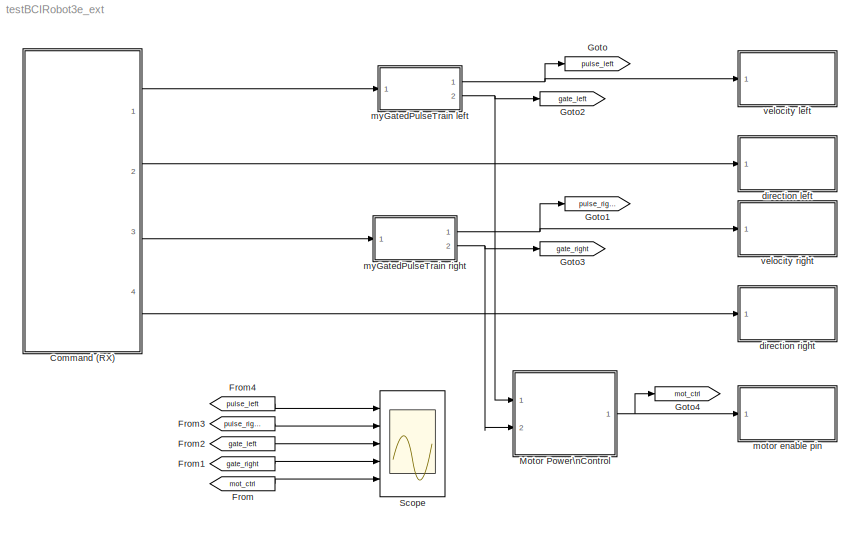
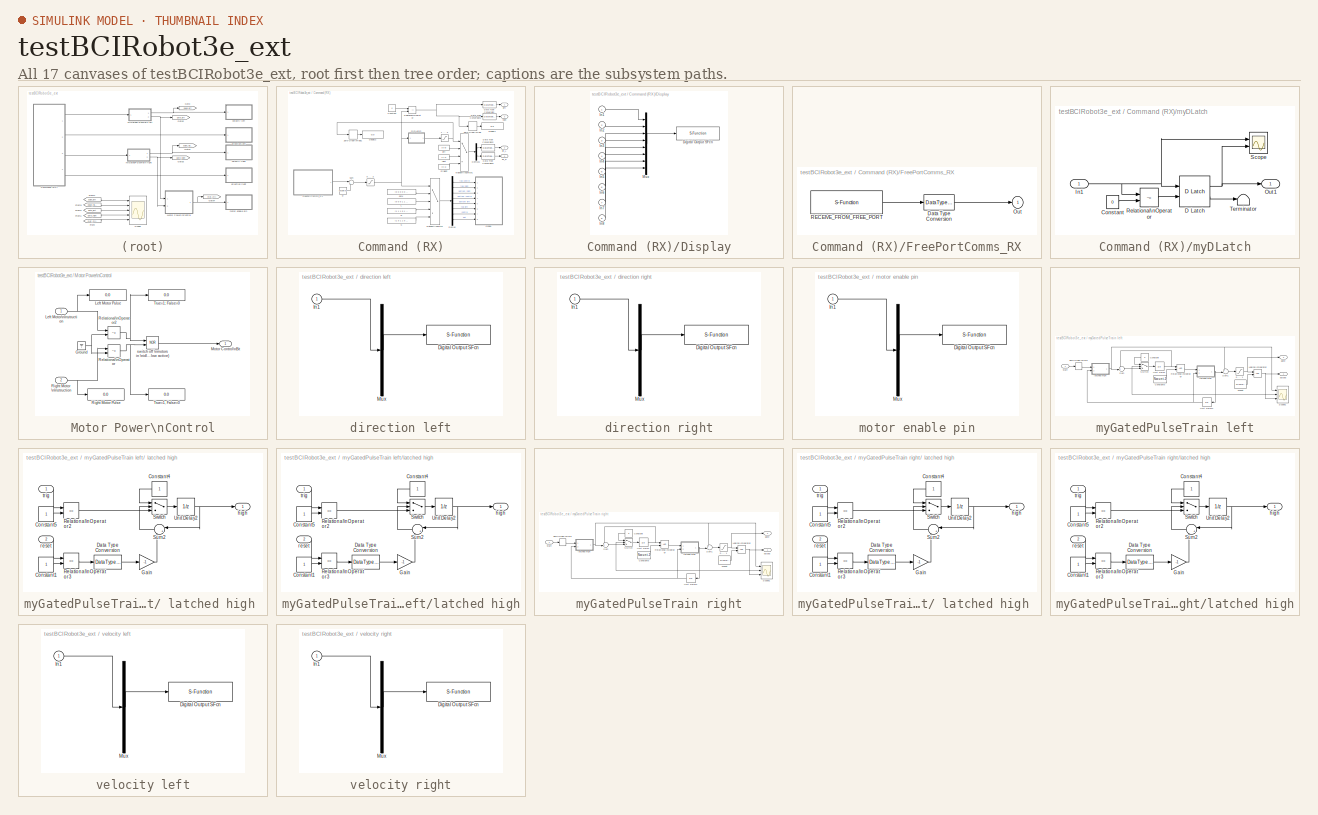
[diagram: thumbnail index - all 17 canvases of the model, root first then tree order]
MODEL testBCIRobot3e_ext
KIND model
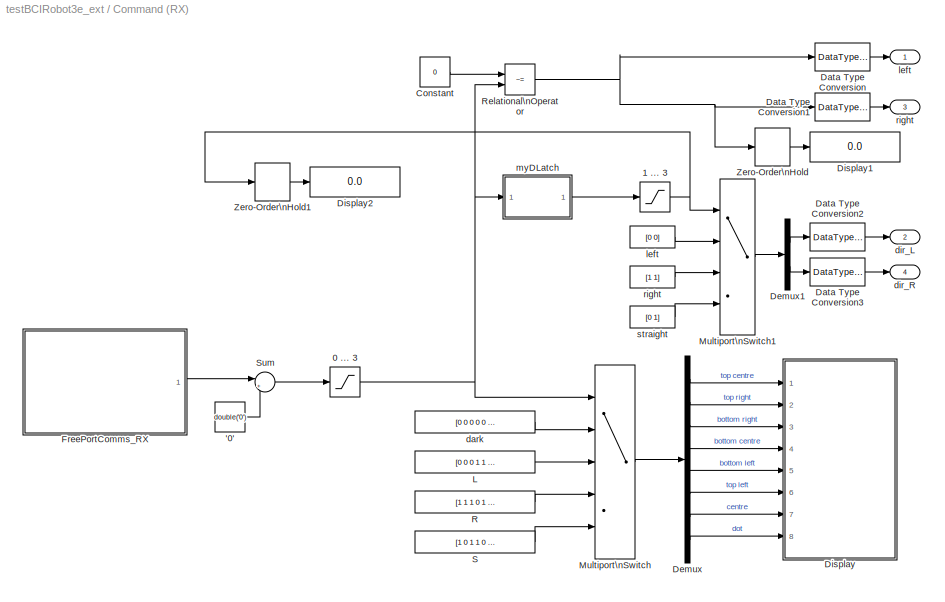
BLOCK [SubSystem] Command (RX)
  Ports = [0, 4]
  RequestExecContextInheritance = off
  SID = 1
BLOCK [Constant] Command (RX)/ left 
  OutDataTypeStr = double
  SID = 2
  Value = [0 0]
BLOCK [Constant] Command (RX)/ right 
  OutDataTypeStr = double
  SID = 3
  Value = [1 1]
BLOCK [Constant] Command (RX)/ straight 
  OutDataTypeStr = double
  SID = 4
  Value = [0 1]
BLOCK [Constant] Command (RX)/'0'
  SID = 5
  Value = double('0')
BLOCK [Saturate] Command (RX)/0 ... 3
  InputPortMap = u0
  LowerLimit = 0
  Ports = [1, 1]
  SID = 6
  UpperLimit = 3
BLOCK [Saturate] Command (RX)/1 ... 3
  InputPortMap = u0
  LowerLimit = 1
  Ports = [1, 1]
  SID = 7
  UpperLimit = 3
BLOCK [Constant] Command (RX)/Constant
  SID = 8
  Value = 0
BLOCK [DataTypeConversion] Command (RX)/Data Type Conversion
  OutDataTypeStr = double
  SID = 9
BLOCK [DataTypeConversion] Command (RX)/Data Type Conversion1
  OutDataTypeStr = double
  SID = 10
BLOCK [DataTypeConversion] Command (RX)/Data Type Conversion2
  OutDataTypeStr = double
  SID = 11
BLOCK [DataTypeConversion] Command (RX)/Data Type Conversion3
  OutDataTypeStr = double
  SID = 12
BLOCK [Demux] Command (RX)/Demux
  Outputs = 8
  Ports = [1, 8]
  SID = 13
BLOCK [Demux] Command (RX)/Demux1
  Outputs = 2
  Ports = [1, 2]
  SID = 14
BLOCK [SubSystem] Command (RX)/Display
  Ports = [8]
  RequestExecContextInheritance = off
  SID = 15
  ShowPortLabels = none
  Tag = mcTarget_digOut
BLOCK [S-Function] Command (RX)/Display/Digital Output SFcn
  EnableBusSupport = off
  FunctionName = digOut_sfcn_9S12
  Parameters = sampletime, port, pins, Von, Voff
  Ports = [1]
  SFcnIsStateOwnerBlock = off
  SFunctionDeploymentMode = off
  SID = 15:9
  Tag = mcTarget_digOut
BLOCK [Inport] Command (RX)/Display/In1
  IconDisplay = Port number
  SID = 15:1
BLOCK [Inport] Command (RX)/Display/In2
  IconDisplay = Port number
  Port = 2
  SID = 15:2
BLOCK [Inport] Command (RX)/Display/In3
  IconDisplay = Port number
  Port = 3
  SID = 15:3
BLOCK [Inport] Command (RX)/Display/In4
  IconDisplay = Port number
  Port = 4
  SID = 15:4
BLOCK [Inport] Command (RX)/Display/In5
  IconDisplay = Port number
  Port = 5
  SID = 15:5
BLOCK [Inport] Command (RX)/Display/In6
  IconDisplay = Port number
  Port = 6
  SID = 15:6
BLOCK [Inport] Command (RX)/Display/In7
  IconDisplay = Port number
  Port = 7
  SID = 15:7
BLOCK [Inport] Command (RX)/Display/In8
  IconDisplay = Port number
  Port = 8
  SID = 15:8
BLOCK [Mux] Command (RX)/Display/Mux
  DisplayOption = bar
  Inputs = 8
  Ports = [8, 1]
  SID = 15:10
BLOCK [Display] Command (RX)/Display1
  Decimation = 1
  ExtModeUploadOption = log
  Ports = [1]
  SID = 16
BLOCK [Display] Command (RX)/Display2
  Decimation = 1
  ExtModeUploadOption = log
  Ports = [1]
  SID = 17
BLOCK [SubSystem] Command (RX)/FreePortComms_RX
  Ports = [0, 1]
  RequestExecContextInheritance = off
  SID = 159
  ShowPortLabels = none
  Tag = mcTarget_freePortCommsRX
BLOCK [DataTypeConversion] Command (RX)/FreePortComms_RX/Data Type Conversion
  OutDataTypeStr = double
  SID = 159:153
BLOCK [Outport] Command (RX)/FreePortComms_RX/Out
  IconDisplay = Port number
  SID = 159:155
BLOCK [S-Function] Command (RX)/FreePortComms_RX/RECEIVE_FROM_FREE_PORT
  EnableBusSupport = off
  FunctionName = freePortComms_rxd
  Parameters = sampletime, channel, buf_size, data_type, port, baudrate, format
  Ports = [0, 1]
  SFcnIsStateOwnerBlock = off
  SFunctionDeploymentMode = off
  SID = 159:154
  Tag = mcTarget_freePortCommsRX
BLOCK [Constant] Command (RX)/L
  OutDataTypeStr = double
  SID = 19
  Value = [0 0 0 1 1 1 0 0 ]
BLOCK [MultiPortSwitch] Command (RX)/Multiport\nSwitch
  DataPortOrder = Zero-based contiguous
  InputSameDT = off
  Inputs = 4
  Ports = [5, 1]
  SID = 20
  zeroidx = on
BLOCK [MultiPortSwitch] Command (RX)/Multiport\nSwitch1
  InputSameDT = off
  Ports = [4, 1]
  SID = 21
BLOCK [Constant] Command (RX)/R
  OutDataTypeStr = double
  SID = 22
  Value = [1 1 1 0 1 1 1 0]
BLOCK [RelationalOperator] Command (RX)/Relational\nOperator
  InputSameDT = off
  Operator = ~=
  OutDataTypeStr = uint(8)
  Ports = [2, 1]
  SID = 23
BLOCK [Constant] Command (RX)/S
  OutDataTypeStr = double
  SID = 24
  Value = [1 0 1 1 0 1 1 0]
BLOCK [Sum] Command (RX)/Sum
  IconShape = round
  InputSameDT = off
  Inputs = |+-
  OutDataTypeStr = Inherit: Inherit via internal rule
  Ports = [2, 1]
  SID = 25
BLOCK [ZeroOrderHold] Command (RX)/Zero-Order\nHold
  SID = 26
  SampleTime = 0.1
BLOCK [ZeroOrderHold] Command (RX)/Zero-Order\nHold1
  SID = 27
  SampleTime = 0.1
BLOCK [Constant] Command (RX)/dark
  OutDataTypeStr = double
  SID = 28
  Value = [0 0 0 0 0 0 0 0]
BLOCK [Outport] Command (RX)/dir_L
  IconDisplay = Port number
  Port = 2
  SID = 38
BLOCK [Outport] Command (RX)/dir_R
  IconDisplay = Port number
  Port = 4
  SID = 40
BLOCK [Outport] Command (RX)/left
  IconDisplay = Port number
  SID = 37
BLOCK [SubSystem] Command (RX)/myDLatch
  Ports = [1, 1]
  RequestExecContextInheritance = off
  SID = 29
BLOCK [Constant] Command (RX)/myDLatch/Constant
  SID = 31
  Value = 0
BLOCK [Reference] Command (RX)/myDLatch/D Latch  REF=simulink_extras/Flip Flops/D Latch
  FunctionWithSeparateData = off
  Ports = [2, 2]
  RTWMemSecDataConstants = Inherit from model
  RTWMemSecDataInternal = Inherit from model
  RTWMemSecDataParameters = Inherit from model
  RTWMemSecFuncExecute = Inherit from model
  RTWMemSecFuncInitTerm = Inherit from model
  SID = 32
  ShowPortLabels = FromPortIcon
  SourceBlock = simulink_extras/Flip Flops/D Latch
  SourceProductBaseCode = SL
  SourceProductName = Simulink
  SourceType = DLatch
  SystemSampleTime = -1
BLOCK [Inport] Command (RX)/myDLatch/In1
  IconDisplay = Port number
  SID = 30
BLOCK [Outport] Command (RX)/myDLatch/Out1
  IconDisplay = Port number
  SID = 36
BLOCK [RelationalOperator] Command (RX)/myDLatch/Relational\nOperator
  InputSameDT = off
  Operator = ~=
  Ports = [2, 1]
  SID = 33
BLOCK [Scope] Command (RX)/myDLatch/Scope
  Floating = off
  NumInputPorts = 2
  Ports = [2]
  SID = 34
  ScopeSpecificationString = C++SS(StrPVP('Location','[188, 365, 512, 604]'),StrPVP('Open','off'),MxPVP('AxesTitles',54,'struct(''axes1'',''%<SignalLabel>'',''axes2'',''%<SignalLabel>'')'),StrPVP('YMin','-5~-5'),StrPVP('YMax','5~5'),StrPVP('SaveName','ScopeData3'),StrPVP('DataFormat','StructureWithTime'),StrPVP('LimitDataPoints','on'),StrPVP('Decimation','1'),StrPVP('BlockParamSampleInput','off'))
BLOCK [Terminator] Command (RX)/myDLatch/Terminator
  SID = 35
BLOCK [Outport] Command (RX)/right
  IconDisplay = Port number
  Port = 3
  SID = 39
BLOCK [From] From
  CloseFcn = tagdialog Close
  GotoTag = mot_ctrl
  SID = 41
BLOCK [From] From1
  CloseFcn = tagdialog Close
  GotoTag = gate_right
  SID = 42
BLOCK [From] From2
  CloseFcn = tagdialog Close
  GotoTag = gate_left
  SID = 43
BLOCK [From] From3
  CloseFcn = tagdialog Close
  GotoTag = pulse_right
  SID = 44
BLOCK [From] From4
  CloseFcn = tagdialog Close
  GotoTag = pulse_left
  SID = 45
BLOCK [Goto] Goto
  GotoTag = pulse_left
  SID = 46
BLOCK [Goto] Goto1
  GotoTag = pulse_right
  SID = 47
BLOCK [Goto] Goto2
  GotoTag = gate_left
  SID = 48
BLOCK [Goto] Goto3
  GotoTag = gate_right
  SID = 49
BLOCK [Goto] Goto4
  GotoTag = mot_ctrl
  SID = 50
BLOCK [SubSystem] Motor Power\nControl
  Ports = [2, 1]
  RequestExecContextInheritance = off
  SID = 51
BLOCK [Ground] Motor Power\nControl/Ground
  SID = 54
BLOCK [Display] Motor Power\nControl/Left Motor Pulse
  Decimation = 1
  Ports = [1]
  SID = 55
BLOCK [Inport] Motor Power\nControl/Left Motor\nInstruction
  IconDisplay = Port number
  SID = 52
BLOCK [Outport] Motor Power\nControl/Motor Control\nBit
  IconDisplay = Port number
  SID = 62
BLOCK [RelationalOperator] Motor Power\nControl/Relational\nOperator
  InputSameDT = off
  Operator = ~=
  Ports = [2, 1]
  SID = 56
BLOCK [RelationalOperator] Motor Power\nControl/Relational\nOperator2
  InputSameDT = off
  Operator = ~=
  Ports = [2, 1]
  SID = 57
BLOCK [Display] Motor Power\nControl/Right Motor Pulse
  Decimation = 1
  Ports = [1]
  SID = 58
BLOCK [Inport] Motor Power\nControl/Right Motor \nInstruction
  IconDisplay = Port number
  Port = 2
  SID = 53
BLOCK [Display] Motor Power\nControl/True=1, False=0
  Decimation = 1
  Ports = [1]
  SID = 59
BLOCK [Display] Motor Power\nControl/True=1; False=0
  Decimation = 1
  Ports = [1]
  SID = 60
BLOCK [Logic] Motor Power\nControl/switch off \nmotors in \nidle state\n(low active)
  AllPortsSameDT = off
  Operator = NOR
  Ports = [2, 1]
  SID = 61
BLOCK [Scope] Scope
  Floating = off
  NumInputPorts = 5
  Ports = [5]
  SID = 63
  ScopeSpecificationString = C++SS(StrPVP('Location','[83, 190, 578, 651]'),StrPVP('Open','off'),MxPVP('AxesTitles',54,'struct(''axes1'',''%<SignalLabel>'',''axes2'',''%<SignalLabel>'',''axes3'',''%<SignalLabel>'',''axes4'',''%<SignalLabel>'',''axes5'',''%<SignalLabel>'')'),StrPVP('TimeRange','10'),StrPVP('YMin','-5~-5~-5~-5~-5'),StrPVP('YMax','5~5~5~5~5'),StrPVP('DataFormat','StructureWithTime'),StrPVP('LimitDataPoints','on'...<+65ch>
BLOCK [SubSystem] direction left
  Ports = [1]
  RequestExecContextInheritance = off
  SID = 64
  ShowPortLabels = none
  Tag = mcTarget_digOut
BLOCK [S-Function] direction left/Digital Output SFcn
  EnableBusSupport = off
  FunctionName = digOut_sfcn_9S12
  Parameters = sampletime, port, pins, Von, Voff
  Ports = [1]
  SFcnIsStateOwnerBlock = off
  SFunctionDeploymentMode = off
  SID = 64:2
  Tag = mcTarget_digOut
BLOCK [Inport] direction left/In1
  IconDisplay = Port number
  SID = 64:1
BLOCK [Mux] direction left/Mux
  DisplayOption = bar
  Inputs = 1
  Ports = [1, 1]
  SID = 64:3
BLOCK [SubSystem] direction right
  Ports = [1]
  RequestExecContextInheritance = off
  SID = 65
  ShowPortLabels = none
  Tag = mcTarget_digOut
BLOCK [S-Function] direction right/Digital Output SFcn
  EnableBusSupport = off
  FunctionName = digOut_sfcn_9S12
  Parameters = sampletime, port, pins, Von, Voff
  Ports = [1]
  SFcnIsStateOwnerBlock = off
  SFunctionDeploymentMode = off
  SID = 65:2
  Tag = mcTarget_digOut
BLOCK [Inport] direction right/In1
  IconDisplay = Port number
  SID = 65:1
BLOCK [Mux] direction right/Mux
  DisplayOption = bar
  Inputs = 1
  Ports = [1, 1]
  SID = 65:3
BLOCK [SubSystem] motor enable pin
  Ports = [1]
  RequestExecContextInheritance = off
  SID = 66
  ShowPortLabels = none
  Tag = mcTarget_digOut
BLOCK [S-Function] motor enable pin/Digital Output SFcn
  EnableBusSupport = off
  FunctionName = digOut_sfcn_9S12
  Parameters = sampletime, port, pins, Von, Voff
  Ports = [1]
  SFcnIsStateOwnerBlock = off
  SFunctionDeploymentMode = off
  SID = 66:2
  Tag = mcTarget_digOut
BLOCK [Inport] motor enable pin/In1
  IconDisplay = Port number
  SID = 66:1
BLOCK [Mux] motor enable pin/Mux
  DisplayOption = bar
  Inputs = 1
  Ports = [1, 1]
  SID = 66:3
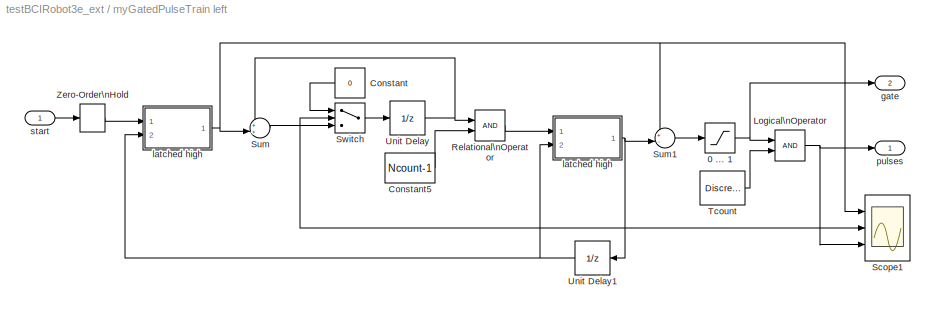
BLOCK [SubSystem] myGatedPulseTrain left
  Ports = [1, 2]
  RequestExecContextInheritance = off
  SID = 67
BLOCK [SubSystem] myGatedPulseTrain left/ latched high 
  Ports = [2, 1]
  RequestExecContextInheritance = off
  SID = 69
BLOCK [Constant] myGatedPulseTrain left/ latched high /Constant1
  SID = 72
BLOCK [Constant] myGatedPulseTrain left/ latched high /Constant4
  SID = 73
BLOCK [Constant] myGatedPulseTrain left/ latched high /Constant5
  SID = 74
BLOCK [DataTypeConversion] myGatedPulseTrain left/ latched high /Data Type Conversion
  OutDataTypeStr = double
  SID = 75
BLOCK [Gain] myGatedPulseTrain left/ latched high /Gain
  Gain = -1
  SID = 76
BLOCK [RelationalOperator] myGatedPulseTrain left/ latched high /Relational\nOperator2
  InputSameDT = off
  Operator = ==
  OutDataTypeStr = uint(8)
  Ports = [2, 1]
  SID = 77
BLOCK [RelationalOperator] myGatedPulseTrain left/ latched high /Relational\nOperator3
  InputSameDT = off
  Operator = ==
  OutDataTypeStr = uint(8)
  Ports = [2, 1]
  SID = 78
BLOCK [Sum] myGatedPulseTrain left/ latched high /Sum2
  IconShape = round
  InputSameDT = off
  Inputs = |++
  OutDataTypeStr = Inherit: Inherit via internal rule
  Ports = [2, 1]
  SID = 79
  SaturateOnIntegerOverflow = off
BLOCK [Switch] myGatedPulseTrain left/ latched high /Switch
  Criteria = u2 > Threshold
  InputSameDT = off
  SID = 80
  SaturateOnIntegerOverflow = off
BLOCK [UnitDelay] myGatedPulseTrain left/ latched high /Unit Delay2
  SID = 81
  SampleTime = -1
BLOCK [Outport] myGatedPulseTrain left/ latched high /high
  IconDisplay = Port number
  SID = 82
BLOCK [Inport] myGatedPulseTrain left/ latched high /reset
  IconDisplay = Port number
  Port = 2
  SID = 71
BLOCK [Inport] myGatedPulseTrain left/ latched high /trig
  IconDisplay = Port number
  SID = 70
BLOCK [Saturate] myGatedPulseTrain left/0 ... 1
  InputPortMap = u0
  LowerLimit = 0
  Ports = [1, 1]
  SID = 83
  UpperLimit = 1
BLOCK [Constant] myGatedPulseTrain left/Constant
  SID = 84
  Value = 0
BLOCK [Constant] myGatedPulseTrain left/Constant5
  SID = 85
  Value = Ncount-1
BLOCK [Logic] myGatedPulseTrain left/Logical\nOperator
  AllPortsSameDT = off
  Ports = [2, 1]
  SID = 86
BLOCK [RelationalOperator] myGatedPulseTrain left/Relational\nOperator
  InputSameDT = off
  OutDataTypeStr = uint(8)
  Ports = [2, 1]
  SID = 87
BLOCK [Scope] myGatedPulseTrain left/Scope1
  Floating = off
  NumInputPorts = 3
  Ports = [3]
  SID = 88
  ScopeSpecificationString = C++SS(StrPVP('Location','[256, 383, 656, 652]'),StrPVP('Open','off'),StrPVP('ZoomMode','xonly'),MxPVP('AxesTitles',54,'struct(''axes1'',''%<SignalLabel>'',''axes2'',''%<SignalLabel>'',''axes3'',''%<SignalLabel>'')'),StrPVP('YMin','-5~-5~-5'),StrPVP('YMax','5~5~5'),StrPVP('SaveName','ScopeData1'),StrPVP('DataFormat','StructureWithTime'),StrPVP('LimitDataPoints','on'),StrPVP('Decimation','1'),StrPVP...<+32ch>
BLOCK [Sum] myGatedPulseTrain left/Sum
  IconShape = round
  InputSameDT = off
  Inputs = ++|
  OutDataTypeStr = Inherit: Inherit via internal rule
  Ports = [2, 1]
  SID = 89
  SaturateOnIntegerOverflow = off
BLOCK [Sum] myGatedPulseTrain left/Sum1
  IconShape = round
  InputSameDT = off
  Inputs = +-|
  OutDataTypeStr = Inherit: Inherit via internal rule
  Ports = [2, 1]
  SID = 90
  SaturateOnIntegerOverflow = off
BLOCK [Switch] myGatedPulseTrain left/Switch
  Criteria = u2 > Threshold
  InputSameDT = off
  SID = 91
  SaturateOnIntegerOverflow = off
BLOCK [DiscretePulseGenerator] myGatedPulseTrain left/Tcount
  Ports = [0, 1]
  SID = 92
  SampleTime = Tcount
BLOCK [UnitDelay] myGatedPulseTrain left/Unit Delay
  SID = 93
  SampleTime = Tcount
BLOCK [UnitDelay] myGatedPulseTrain left/Unit Delay1
  SID = 94
  SampleTime = Tcount
BLOCK [ZeroOrderHold] myGatedPulseTrain left/Zero-Order\nHold
  SID = 95
  SampleTime = Tcount
BLOCK [Outport] myGatedPulseTrain left/gate
  IconDisplay = Port number
  Port = 2
  SID = 111
BLOCK [SubSystem] myGatedPulseTrain left/latched high
  Ports = [2, 1]
  RequestExecContextInheritance = off
  SID = 96
BLOCK [Constant] myGatedPulseTrain left/latched high/Constant1
  SID = 99
BLOCK [Constant] myGatedPulseTrain left/latched high/Constant4
  SID = 100
BLOCK [Constant] myGatedPulseTrain left/latched high/Constant5
  SID = 101
BLOCK [DataTypeConversion] myGatedPulseTrain left/latched high/Data Type Conversion
  OutDataTypeStr = double
  SID = 102
BLOCK [Gain] myGatedPulseTrain left/latched high/Gain
  Gain = -1
  SID = 103
BLOCK [RelationalOperator] myGatedPulseTrain left/latched high/Relational\nOperator2
  InputSameDT = off
  Operator = ==
  OutDataTypeStr = uint(8)
  Ports = [2, 1]
  SID = 104
BLOCK [RelationalOperator] myGatedPulseTrain left/latched high/Relational\nOperator3
  InputSameDT = off
  Operator = ==
  OutDataTypeStr = uint(8)
  Ports = [2, 1]
  SID = 105
BLOCK [Sum] myGatedPulseTrain left/latched high/Sum2
  IconShape = round
  InputSameDT = off
  Inputs = |++
  OutDataTypeStr = Inherit: Inherit via internal rule
  Ports = [2, 1]
  SID = 106
  SaturateOnIntegerOverflow = off
BLOCK [Switch] myGatedPulseTrain left/latched high/Switch
  Criteria = u2 > Threshold
  InputSameDT = off
  SID = 107
  SaturateOnIntegerOverflow = off
BLOCK [UnitDelay] myGatedPulseTrain left/latched high/Unit Delay2
  SID = 108
  SampleTime = -1
BLOCK [Outport] myGatedPulseTrain left/latched high/high
  IconDisplay = Port number
  SID = 109
BLOCK [Inport] myGatedPulseTrain left/latched high/reset
  IconDisplay = Port number
  Port = 2
  SID = 98
BLOCK [Inport] myGatedPulseTrain left/latched high/trig
  IconDisplay = Port number
  SID = 97
BLOCK [Outport] myGatedPulseTrain left/pulses
  IconDisplay = Port number
  SID = 110
BLOCK [Inport] myGatedPulseTrain left/start
  IconDisplay = Port number
  SID = 68
BLOCK [SubSystem] myGatedPulseTrain right
  Ports = [1, 2]
  RequestExecContextInheritance = off
  SID = 112
BLOCK [SubSystem] myGatedPulseTrain right/ latched high 
  Ports = [2, 1]
  RequestExecContextInheritance = off
  SID = 114
BLOCK [Constant] myGatedPulseTrain right/ latched high /Constant1
  SID = 117
BLOCK [Constant] myGatedPulseTrain right/ latched high /Constant4
  SID = 118
BLOCK [Constant] myGatedPulseTrain right/ latched high /Constant5
  SID = 119
BLOCK [DataTypeConversion] myGatedPulseTrain right/ latched high /Data Type Conversion
  OutDataTypeStr = double
  SID = 120
BLOCK [Gain] myGatedPulseTrain right/ latched high /Gain
  Gain = -1
  SID = 121
BLOCK [RelationalOperator] myGatedPulseTrain right/ latched high /Relational\nOperator2
  InputSameDT = off
  Operator = ==
  OutDataTypeStr = uint(8)
  Ports = [2, 1]
  SID = 122
BLOCK [RelationalOperator] myGatedPulseTrain right/ latched high /Relational\nOperator3
  InputSameDT = off
  Operator = ==
  OutDataTypeStr = uint(8)
  Ports = [2, 1]
  SID = 123
BLOCK [Sum] myGatedPulseTrain right/ latched high /Sum2
  IconShape = round
  InputSameDT = off
  Inputs = |++
  OutDataTypeStr = Inherit: Inherit via internal rule
  Ports = [2, 1]
  SID = 124
  SaturateOnIntegerOverflow = off
BLOCK [Switch] myGatedPulseTrain right/ latched high /Switch
  Criteria = u2 > Threshold
  InputSameDT = off
  SID = 125
  SaturateOnIntegerOverflow = off
BLOCK [UnitDelay] myGatedPulseTrain right/ latched high /Unit Delay2
  SID = 126
  SampleTime = -1
BLOCK [Outport] myGatedPulseTrain right/ latched high /high
  IconDisplay = Port number
  SID = 127
BLOCK [Inport] myGatedPulseTrain right/ latched high /reset
  IconDisplay = Port number
  Port = 2
  SID = 116
BLOCK [Inport] myGatedPulseTrain right/ latched high /trig
  IconDisplay = Port number
  SID = 115
BLOCK [Saturate] myGatedPulseTrain right/0 ... 1
  InputPortMap = u0
  LowerLimit = 0
  Ports = [1, 1]
  SID = 128
  UpperLimit = 1
BLOCK [Constant] myGatedPulseTrain right/Constant
  SID = 129
  Value = 0
BLOCK [Constant] myGatedPulseTrain right/Constant5
  SID = 130
  Value = Ncount-1
BLOCK [Logic] myGatedPulseTrain right/Logical\nOperator
  AllPortsSameDT = off
  Ports = [2, 1]
  SID = 131
BLOCK [RelationalOperator] myGatedPulseTrain right/Relational\nOperator
  InputSameDT = off
  OutDataTypeStr = uint(8)
  Ports = [2, 1]
  SID = 132
BLOCK [Scope] myGatedPulseTrain right/Scope1
  Floating = off
  NumInputPorts = 3
  Ports = [3]
  SID = 133
  ScopeSpecificationString = C++SS(StrPVP('Location','[256, 383, 656, 652]'),StrPVP('Open','off'),StrPVP('ZoomMode','xonly'),MxPVP('AxesTitles',54,'struct(''axes1'',''%<SignalLabel>'',''axes2'',''%<SignalLabel>'',''axes3'',''%<SignalLabel>'')'),StrPVP('YMin','-5~-5~-5'),StrPVP('YMax','5~5~5'),StrPVP('SaveName','ScopeData1'),StrPVP('DataFormat','StructureWithTime'),StrPVP('LimitDataPoints','on'),StrPVP('Decimation','1'),StrPVP...<+32ch>
BLOCK [Sum] myGatedPulseTrain right/Sum
  IconShape = round
  InputSameDT = off
  Inputs = ++|
  OutDataTypeStr = Inherit: Inherit via internal rule
  Ports = [2, 1]
  SID = 134
  SaturateOnIntegerOverflow = off
BLOCK [Sum] myGatedPulseTrain right/Sum1
  IconShape = round
  InputSameDT = off
  Inputs = +-|
  OutDataTypeStr = Inherit: Inherit via internal rule
  Ports = [2, 1]
  SID = 135
  SaturateOnIntegerOverflow = off
BLOCK [Switch] myGatedPulseTrain right/Switch
  Criteria = u2 > Threshold
  InputSameDT = off
  SID = 136
  SaturateOnIntegerOverflow = off
BLOCK [DiscretePulseGenerator] myGatedPulseTrain right/Tcount
  Ports = [0, 1]
  SID = 137
  SampleTime = Tcount
BLOCK [UnitDelay] myGatedPulseTrain right/Unit Delay
  SID = 138
  SampleTime = Tcount
BLOCK [UnitDelay] myGatedPulseTrain right/Unit Delay1
  SID = 139
  SampleTime = Tcount
BLOCK [ZeroOrderHold] myGatedPulseTrain right/Zero-Order\nHold
  SID = 140
  SampleTime = Tcount
BLOCK [Outport] myGatedPulseTrain right/gate
  IconDisplay = Port number
  Port = 2
  SID = 156
BLOCK [SubSystem] myGatedPulseTrain right/latched high
  Ports = [2, 1]
  RequestExecContextInheritance = off
  SID = 141
BLOCK [Constant] myGatedPulseTrain right/latched high/Constant1
  SID = 144
BLOCK [Constant] myGatedPulseTrain right/latched high/Constant4
  SID = 145
BLOCK [Constant] myGatedPulseTrain right/latched high/Constant5
  SID = 146
BLOCK [DataTypeConversion] myGatedPulseTrain right/latched high/Data Type Conversion
  OutDataTypeStr = double
  SID = 147
BLOCK [Gain] myGatedPulseTrain right/latched high/Gain
  Gain = -1
  SID = 148
BLOCK [RelationalOperator] myGatedPulseTrain right/latched high/Relational\nOperator2
  InputSameDT = off
  Operator = ==
  OutDataTypeStr = uint(8)
  Ports = [2, 1]
  SID = 149
BLOCK [RelationalOperator] myGatedPulseTrain right/latched high/Relational\nOperator3
  InputSameDT = off
  Operator = ==
  OutDataTypeStr = uint(8)
  Ports = [2, 1]
  SID = 150
BLOCK [Sum] myGatedPulseTrain right/latched high/Sum2
  IconShape = round
  InputSameDT = off
  Inputs = |++
  OutDataTypeStr = Inherit: Inherit via internal rule
  Ports = [2, 1]
  SID = 151
  SaturateOnIntegerOverflow = off
BLOCK [Switch] myGatedPulseTrain right/latched high/Switch
  Criteria = u2 > Threshold
  InputSameDT = off
  SID = 152
  SaturateOnIntegerOverflow = off
BLOCK [UnitDelay] myGatedPulseTrain right/latched high/Unit Delay2
  SID = 153
  SampleTime = -1
BLOCK [Outport] myGatedPulseTrain right/latched high/high
  IconDisplay = Port number
  SID = 154
BLOCK [Inport] myGatedPulseTrain right/latched high/reset
  IconDisplay = Port number
  Port = 2
  SID = 143
BLOCK [Inport] myGatedPulseTrain right/latched high/trig
  IconDisplay = Port number
  SID = 142
BLOCK [Outport] myGatedPulseTrain right/pulses
  IconDisplay = Port number
  SID = 155
BLOCK [Inport] myGatedPulseTrain right/start
  IconDisplay = Port number
  SID = 113
BLOCK [SubSystem] velocity left
  Ports = [1]
  RequestExecContextInheritance = off
  SID = 157
  ShowPortLabels = none
  Tag = mcTarget_digOut
BLOCK [S-Function] velocity left/Digital Output SFcn
  EnableBusSupport = off
  FunctionName = digOut_sfcn_9S12
  Parameters = sampletime, port, pins, Von, Voff
  Ports = [1]
  SFcnIsStateOwnerBlock = off
  SFunctionDeploymentMode = off
  SID = 157:2
  Tag = mcTarget_digOut
BLOCK [Inport] velocity left/In1
  IconDisplay = Port number
  SID = 157:1
BLOCK [Mux] velocity left/Mux
  DisplayOption = bar
  Inputs = 1
  Ports = [1, 1]
  SID = 157:3
BLOCK [SubSystem] velocity right
  Ports = [1]
  RequestExecContextInheritance = off
  SID = 158
  ShowPortLabels = none
  Tag = mcTarget_digOut
BLOCK [S-Function] velocity right/Digital Output SFcn
  EnableBusSupport = off
  FunctionName = digOut_sfcn_9S12
  Parameters = sampletime, port, pins, Von, Voff
  Ports = [1]
  SFcnIsStateOwnerBlock = off
  SFunctionDeploymentMode = off
  SID = 158:2
  Tag = mcTarget_digOut
BLOCK [Inport] velocity right/In1
  IconDisplay = Port number
  SID = 158:1
BLOCK [Mux] velocity right/Mux
  DisplayOption = bar
  Inputs = 1
  Ports = [1, 1]
  SID = 158:3
LINE Command (RX)/ left :1 -> Command (RX)/Multiport\nSwitch1:2
LINE Command (RX)/ right :1 -> Command (RX)/Multiport\nSwitch1:3
LINE Command (RX)/ straight :1 -> Command (RX)/Multiport\nSwitch1:4
LINE Command (RX)/'0':1 -> Command (RX)/Sum:2
NET Command (RX)/0 ... 3:1 -> Command (RX)/Multiport\nSwitch:1, Command (RX)/Relational\nOperator:2, Command (RX)/myDLatch:1
NET Command (RX)/1 ... 3:1 -> Command (RX)/Multiport\nSwitch1:1, Command (RX)/Zero-Order\nHold1:1
LINE Command (RX)/Constant:1 -> Command (RX)/Relational\nOperator:1
LINE Command (RX)/Data Type Conversion1:1 -> Command (RX)/right:1
LINE Command (RX)/Data Type Conversion2:1 -> Command (RX)/dir_L:1
LINE Command (RX)/Data Type Conversion3:1 -> Command (RX)/dir_R:1
LINE Command (RX)/Data Type Conversion:1 -> Command (RX)/left:1
LINE Command (RX)/Demux1:1 -> Command (RX)/Data Type Conversion2:1
LINE Command (RX)/Demux1:2 -> Command (RX)/Data Type Conversion3:1
LINE Command (RX)/Demux:1 -> Command (RX)/Display:1
LINE Command (RX)/Demux:2 -> Command (RX)/Display:2
LINE Command (RX)/Demux:3 -> Command (RX)/Display:3
LINE Command (RX)/Demux:4 -> Command (RX)/Display:4
LINE Command (RX)/Demux:5 -> Command (RX)/Display:5
LINE Command (RX)/Demux:6 -> Command (RX)/Display:6
LINE Command (RX)/Demux:7 -> Command (RX)/Display:7
LINE Command (RX)/Demux:8 -> Command (RX)/Display:8
LINE Command (RX)/Display/In1:1 -> Command (RX)/Display/Mux:1
LINE Command (RX)/Display/In2:1 -> Command (RX)/Display/Mux:2
LINE Command (RX)/Display/In3:1 -> Command (RX)/Display/Mux:3
LINE Command (RX)/Display/In4:1 -> Command (RX)/Display/Mux:4
LINE Command (RX)/Display/In5:1 -> Command (RX)/Display/Mux:5
LINE Command (RX)/Display/In6:1 -> Command (RX)/Display/Mux:6
LINE Command (RX)/Display/In7:1 -> Command (RX)/Display/Mux:7
LINE Command (RX)/Display/In8:1 -> Command (RX)/Display/Mux:8
LINE Command (RX)/Display/Mux:1 -> Command (RX)/Display/Digital Output SFcn:1
LINE Command (RX)/FreePortComms_RX/Data Type Conversion:1 -> Command (RX)/FreePortComms_RX/Out:1
LINE Command (RX)/FreePortComms_RX/RECEIVE_FROM_FREE_PORT:1 -> Command (RX)/FreePortComms_RX/Data Type Conversion:1
LINE Command (RX)/FreePortComms_RX:1 -> Command (RX)/Sum:1
LINE Command (RX)/L:1 -> Command (RX)/Multiport\nSwitch:3
LINE Command (RX)/Multiport\nSwitch1:1 -> Command (RX)/Demux1:1
LINE Command (RX)/Multiport\nSwitch:1 -> Command (RX)/Demux:1
LINE Command (RX)/R:1 -> Command (RX)/Multiport\nSwitch:4
NET Command (RX)/Relational\nOperator:1 -> Command (RX)/Data Type Conversion1:1, Command (RX)/Data Type Conversion:1, Command (RX)/Zero-Order\nHold:1
LINE Command (RX)/S:1 -> Command (RX)/Multiport\nSwitch:5
LINE Command (RX)/Sum:1 -> Command (RX)/0 ... 3:1
LINE Command (RX)/Zero-Order\nHold1:1 -> Command (RX)/Display2:1
LINE Command (RX)/Zero-Order\nHold:1 -> Command (RX)/Display1:1
LINE Command (RX)/dark:1 -> Command (RX)/Multiport\nSwitch:2
LINE Command (RX)/myDLatch/Constant:1 -> Command (RX)/myDLatch/Relational\nOperator:2
NET Command (RX)/myDLatch/D Latch:1 -> Command (RX)/myDLatch/Out1:1, Command (RX)/myDLatch/Scope:2
LINE Command (RX)/myDLatch/D Latch:2 -> Command (RX)/myDLatch/Terminator:1
NET Command (RX)/myDLatch/In1:1 -> Command (RX)/myDLatch/D Latch:1, Command (RX)/myDLatch/Relational\nOperator:1, Command (RX)/myDLatch/Scope:1
LINE Command (RX)/myDLatch/Relational\nOperator:1 -> Command (RX)/myDLatch/D Latch:2
LINE Command (RX)/myDLatch:1 -> Command (RX)/1 ... 3:1
LINE Command (RX):1 -> myGatedPulseTrain left:1
LINE Command (RX):2 -> direction left:1
LINE Command (RX):3 -> myGatedPulseTrain right:1
LINE Command (RX):4 -> direction right:1
LINE From1:1 -> Scope:4
LINE From2:1 -> Scope:3
LINE From3:1 -> Scope:2
LINE From4:1 -> Scope:1
LINE From:1 -> Scope:5
NET Motor Power\nControl/Ground:1 -> Motor Power\nControl/Relational\nOperator2:2, Motor Power\nControl/Relational\nOperator:2
NET Motor Power\nControl/Left Motor\nInstruction:1 -> Motor Power\nControl/Left Motor Pulse:1, Motor Power\nControl/Relational\nOperator2:1
NET Motor Power\nControl/Relational\nOperator2:1 -> Motor Power\nControl/True=1; False=0:1, Motor Power\nControl/switch off \nmotors in \nidle state\n(low active):1
NET Motor Power\nControl/Relational\nOperator:1 -> Motor Power\nControl/True=1, False=0:1, Motor Power\nControl/switch off \nmotors in \nidle state\n(low active):2
NET Motor Power\nControl/Right Motor \nInstruction:1 -> Motor Power\nControl/Relational\nOperator:1, Motor Power\nControl/Right Motor Pulse:1
LINE Motor Power\nControl/switch off \nmotors in \nidle state\n(low active):1 -> Motor Power\nControl/Motor Control\nBit:1
NET Motor Power\nControl:1 -> Goto4:1, motor enable pin:1
LINE direction left/In1:1 -> direction left/Mux:1
LINE direction left/Mux:1 -> direction left/Digital Output SFcn:1
LINE direction right/In1:1 -> direction right/Mux:1
LINE direction right/Mux:1 -> direction right/Digital Output SFcn:1
LINE motor enable pin/In1:1 -> motor enable pin/Mux:1
LINE motor enable pin/Mux:1 -> motor enable pin/Digital Output SFcn:1
LINE myGatedPulseTrain left/ latched high /Constant1:1 -> myGatedPulseTrain left/ latched high /Relational\nOperator3:2
LINE myGatedPulseTrain left/ latched high /Constant4:1 -> myGatedPulseTrain left/ latched high /Switch:1
LINE myGatedPulseTrain left/ latched high /Constant5:1 -> myGatedPulseTrain left/ latched high /Relational\nOperator2:2
LINE myGatedPulseTrain left/ latched high /Data Type Conversion:1 -> myGatedPulseTrain left/ latched high /Gain:1
LINE myGatedPulseTrain left/ latched high /Gain:1 -> myGatedPulseTrain left/ latched high /Sum2:2
LINE myGatedPulseTrain left/ latched high /Relational\nOperator2:1 -> myGatedPulseTrain left/ latched high /Switch:3
LINE myGatedPulseTrain left/ latched high /Relational\nOperator3:1 -> myGatedPulseTrain left/ latched high /Data Type Conversion:1
LINE myGatedPulseTrain left/ latched high /Sum2:1 -> myGatedPulseTrain left/ latched high /Switch:2
LINE myGatedPulseTrain left/ latched high /Switch:1 -> myGatedPulseTrain left/ latched high /Unit Delay2:1
NET myGatedPulseTrain left/ latched high /Unit Delay2:1 -> myGatedPulseTrain left/ latched high /Sum2:1, myGatedPulseTrain left/ latched high /high:1
LINE myGatedPulseTrain left/ latched high /reset:1 -> myGatedPulseTrain left/ latched high /Relational\nOperator3:1
LINE myGatedPulseTrain left/ latched high /trig:1 -> myGatedPulseTrain left/ latched high /Relational\nOperator2:1
NET myGatedPulseTrain left/ latched high :1 -> myGatedPulseTrain left/Scope1:2, myGatedPulseTrain left/Sum1:2, myGatedPulseTrain left/Switch:2, myGatedPulseTrain left/Unit Delay1:1
NET myGatedPulseTrain left/0 ... 1:1 -> myGatedPulseTrain left/Logical\nOperator:1, myGatedPulseTrain left/gate:1
LINE myGatedPulseTrain left/Constant5:1 -> myGatedPulseTrain left/Relational\nOperator:2
LINE myGatedPulseTrain left/Constant:1 -> myGatedPulseTrain left/Switch:1
NET myGatedPulseTrain left/Logical\nOperator:1 -> myGatedPulseTrain left/Scope1:3, myGatedPulseTrain left/pulses:1
LINE myGatedPulseTrain left/Relational\nOperator:1 -> myGatedPulseTrain left/ latched high :1
LINE myGatedPulseTrain left/Sum1:1 -> myGatedPulseTrain left/0 ... 1:1
LINE myGatedPulseTrain left/Sum:1 -> myGatedPulseTrain left/Switch:3
LINE myGatedPulseTrain left/Switch:1 -> myGatedPulseTrain left/Unit Delay:1
LINE myGatedPulseTrain left/Tcount:1 -> myGatedPulseTrain left/Logical\nOperator:2
NET myGatedPulseTrain left/Unit Delay1:1 -> myGatedPulseTrain left/ latched high :2, myGatedPulseTrain left/latched high:2
NET myGatedPulseTrain left/Unit Delay:1 -> myGatedPulseTrain left/Relational\nOperator:1, myGatedPulseTrain left/Sum:1
LINE myGatedPulseTrain left/Zero-Order\nHold:1 -> myGatedPulseTrain left/latched high:1
LINE myGatedPulseTrain left/latched high/Constant1:1 -> myGatedPulseTrain left/latched high/Relational\nOperator3:2
LINE myGatedPulseTrain left/latched high/Constant4:1 -> myGatedPulseTrain left/latched high/Switch:1
LINE myGatedPulseTrain left/latched high/Constant5:1 -> myGatedPulseTrain left/latched high/Relational\nOperator2:2
LINE myGatedPulseTrain left/latched high/Data Type Conversion:1 -> myGatedPulseTrain left/latched high/Gain:1
LINE myGatedPulseTrain left/latched high/Gain:1 -> myGatedPulseTrain left/latched high/Sum2:2
LINE myGatedPulseTrain left/latched high/Relational\nOperator2:1 -> myGatedPulseTrain left/latched high/Switch:3
LINE myGatedPulseTrain left/latched high/Relational\nOperator3:1 -> myGatedPulseTrain left/latched high/Data Type Conversion:1
LINE myGatedPulseTrain left/latched high/Sum2:1 -> myGatedPulseTrain left/latched high/Switch:2
LINE myGatedPulseTrain left/latched high/Switch:1 -> myGatedPulseTrain left/latched high/Unit Delay2:1
NET myGatedPulseTrain left/latched high/Unit Delay2:1 -> myGatedPulseTrain left/latched high/Sum2:1, myGatedPulseTrain left/latched high/high:1
LINE myGatedPulseTrain left/latched high/reset:1 -> myGatedPulseTrain left/latched high/Relational\nOperator3:1
LINE myGatedPulseTrain left/latched high/trig:1 -> myGatedPulseTrain left/latched high/Relational\nOperator2:1
NET myGatedPulseTrain left/latched high:1 -> myGatedPulseTrain left/Scope1:1, myGatedPulseTrain left/Sum1:1, myGatedPulseTrain left/Sum:2
LINE myGatedPulseTrain left/start:1 -> myGatedPulseTrain left/Zero-Order\nHold:1
NET myGatedPulseTrain left:1 -> Goto:1, velocity left:1
NET myGatedPulseTrain left:2 -> Goto2:1, Motor Power\nControl:1
LINE myGatedPulseTrain right/ latched high /Constant1:1 -> myGatedPulseTrain right/ latched high /Relational\nOperator3:2
LINE myGatedPulseTrain right/ latched high /Constant4:1 -> myGatedPulseTrain right/ latched high /Switch:1
LINE myGatedPulseTrain right/ latched high /Constant5:1 -> myGatedPulseTrain right/ latched high /Relational\nOperator2:2
LINE myGatedPulseTrain right/ latched high /Data Type Conversion:1 -> myGatedPulseTrain right/ latched high /Gain:1
LINE myGatedPulseTrain right/ latched high /Gain:1 -> myGatedPulseTrain right/ latched high /Sum2:2
LINE myGatedPulseTrain right/ latched high /Relational\nOperator2:1 -> myGatedPulseTrain right/ latched high /Switch:3
LINE myGatedPulseTrain right/ latched high /Relational\nOperator3:1 -> myGatedPulseTrain right/ latched high /Data Type Conversion:1
LINE myGatedPulseTrain right/ latched high /Sum2:1 -> myGatedPulseTrain right/ latched high /Switch:2
LINE myGatedPulseTrain right/ latched high /Switch:1 -> myGatedPulseTrain right/ latched high /Unit Delay2:1
NET myGatedPulseTrain right/ latched high /Unit Delay2:1 -> myGatedPulseTrain right/ latched high /Sum2:1, myGatedPulseTrain right/ latched high /high:1
LINE myGatedPulseTrain right/ latched high /reset:1 -> myGatedPulseTrain right/ latched high /Relational\nOperator3:1
LINE myGatedPulseTrain right/ latched high /trig:1 -> myGatedPulseTrain right/ latched high /Relational\nOperator2:1
NET myGatedPulseTrain right/ latched high :1 -> myGatedPulseTrain right/Scope1:2, myGatedPulseTrain right/Sum1:2, myGatedPulseTrain right/Switch:2, myGatedPulseTrain right/Unit Delay1:1
NET myGatedPulseTrain right/0 ... 1:1 -> myGatedPulseTrain right/Logical\nOperator:1, myGatedPulseTrain right/gate:1
LINE myGatedPulseTrain right/Constant5:1 -> myGatedPulseTrain right/Relational\nOperator:2
LINE myGatedPulseTrain right/Constant:1 -> myGatedPulseTrain right/Switch:1
NET myGatedPulseTrain right/Logical\nOperator:1 -> myGatedPulseTrain right/Scope1:3, myGatedPulseTrain right/pulses:1
LINE myGatedPulseTrain right/Relational\nOperator:1 -> myGatedPulseTrain right/ latched high :1
LINE myGatedPulseTrain right/Sum1:1 -> myGatedPulseTrain right/0 ... 1:1
LINE myGatedPulseTrain right/Sum:1 -> myGatedPulseTrain right/Switch:3
LINE myGatedPulseTrain right/Switch:1 -> myGatedPulseTrain right/Unit Delay:1
LINE myGatedPulseTrain right/Tcount:1 -> myGatedPulseTrain right/Logical\nOperator:2
NET myGatedPulseTrain right/Unit Delay1:1 -> myGatedPulseTrain right/ latched high :2, myGatedPulseTrain right/latched high:2
NET myGatedPulseTrain right/Unit Delay:1 -> myGatedPulseTrain right/Relational\nOperator:1, myGatedPulseTrain right/Sum:1
LINE myGatedPulseTrain right/Zero-Order\nHold:1 -> myGatedPulseTrain right/latched high:1
LINE myGatedPulseTrain right/latched high/Constant1:1 -> myGatedPulseTrain right/latched high/Relational\nOperator3:2
LINE myGatedPulseTrain right/latched high/Constant4:1 -> myGatedPulseTrain right/latched high/Switch:1
LINE myGatedPulseTrain right/latched high/Constant5:1 -> myGatedPulseTrain right/latched high/Relational\nOperator2:2
LINE myGatedPulseTrain right/latched high/Data Type Conversion:1 -> myGatedPulseTrain right/latched high/Gain:1
LINE myGatedPulseTrain right/latched high/Gain:1 -> myGatedPulseTrain right/latched high/Sum2:2
LINE myGatedPulseTrain right/latched high/Relational\nOperator2:1 -> myGatedPulseTrain right/latched high/Switch:3
LINE myGatedPulseTrain right/latched high/Relational\nOperator3:1 -> myGatedPulseTrain right/latched high/Data Type Conversion:1
LINE myGatedPulseTrain right/latched high/Sum2:1 -> myGatedPulseTrain right/latched high/Switch:2
LINE myGatedPulseTrain right/latched high/Switch:1 -> myGatedPulseTrain right/latched high/Unit Delay2:1
NET myGatedPulseTrain right/latched high/Unit Delay2:1 -> myGatedPulseTrain right/latched high/Sum2:1, myGatedPulseTrain right/latched high/high:1
LINE myGatedPulseTrain right/latched high/reset:1 -> myGatedPulseTrain right/latched high/Relational\nOperator3:1
LINE myGatedPulseTrain right/latched high/trig:1 -> myGatedPulseTrain right/latched high/Relational\nOperator2:1
NET myGatedPulseTrain right/latched high:1 -> myGatedPulseTrain right/Scope1:1, myGatedPulseTrain right/Sum1:1, myGatedPulseTrain right/Sum:2
LINE myGatedPulseTrain right/start:1 -> myGatedPulseTrain right/Zero-Order\nHold:1
NET myGatedPulseTrain right:1 -> Goto1:1, velocity right:1
NET myGatedPulseTrain right:2 -> Goto3:1, Motor Power\nControl:2
LINE velocity left/In1:1 -> velocity left/Mux:1
LINE velocity left/Mux:1 -> velocity left/Digital Output SFcn:1
LINE velocity right/In1:1 -> velocity right/Mux:1
LINE velocity right/Mux:1 -> velocity right/Digital Output SFcn:1
note: NET lines group one-source signal fan-out (src -> all destinations, sorted); 1:1 wires keep LINE
